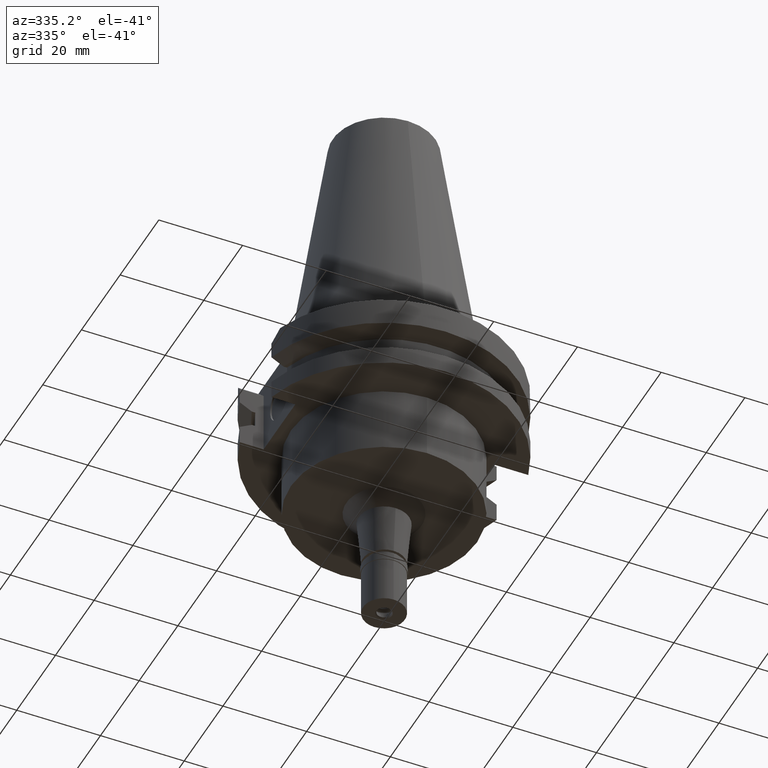
[diagram: clean part render]
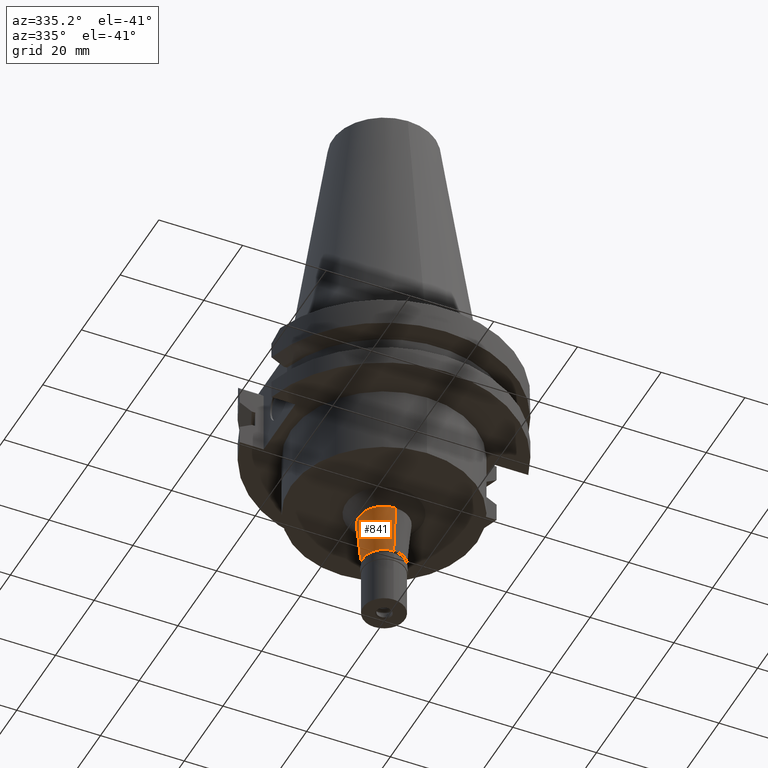
[diagram: same view with one face highlighted and labeled with its STEP entity id]
A machine part, auxiliary view. The second image highlights one B-rep face of the part: STEP entity #841.
In plain terms, the highlighted conical surface has half-angle 5 deg.
Its self-contained STEP definition (entity closure, byte-faithful):
#75 = DIRECTION ( 'NONE',  ( 0.0000000000000000000, 0.0000000000000000000, 1.000000000000000000 ) ) ;
#76 = CARTESIAN_POINT ( 'NONE',  ( 0.0000000000000000000, 6.006119630547999577, -38.00000000000000000 ) ) ;
#84 = CARTESIAN_POINT ( 'NONE',  ( 0.0000000000000000000, -6.006119630547999577, -38.00000000000000000 ) ) ;
#86 = CARTESIAN_POINT ( 'NONE',  ( 0.0000000000000000000, 0.0000000000000000000, -43.75000000000000000 ) ) ;
#296 = CIRCLE ( 'NONE', #1795, 6.006119630547999577 ) ;
#308 = CARTESIAN_POINT ( 'NONE',  ( 0.0000000000000000000, 5.000000000000000000, -49.50000000000000000 ) ) ;
#315 = VECTOR ( 'NONE', #1236, 1000.000000000000000 ) ;
#561 = DIRECTION ( 'NONE',  ( 0.0000000000000000000, 1.000000000000000000, 0.0000000000000000000 ) ) ;
#581 = LINE ( 'NONE', #76, #1510 ) ;
#841 = ADVANCED_FACE ( 'NONE', ( #2505 ), #2599, .T. ) ;
#848 = CARTESIAN_POINT ( 'NONE',  ( 0.0000000000000000000, 6.006119630547999577, -38.00000000000000000 ) ) ;
#873 = DIRECTION ( 'NONE',  ( 0.0000000000000000000, -1.000000000000000000, 0.0000000000000000000 ) ) ;
#874 = VERTEX_POINT ( 'NONE', #308 ) ;
#1202 = AXIS2_PLACEMENT_3D ( 'NONE', #86, #75, #561 ) ;
#1236 = DIRECTION ( 'NONE',  ( 0.0000000000000000000, 0.08715574274765398866, -0.9961946980917458783 ) ) ;
#1383 = ORIENTED_EDGE ( 'NONE', *, *, #2523, .F. ) ;
#1448 = EDGE_CURVE ( 'NONE', #874, #2377, #2049, .T. ) ;
#1510 = VECTOR ( 'NONE', #2756, 1000.000000000000000 ) ;
#1531 = ORIENTED_EDGE ( 'NONE', *, *, #2739, .T. ) ;
#1653 = ORIENTED_EDGE ( 'NONE', *, *, #1448, .T. ) ;
#1699 = VERTEX_POINT ( 'NONE', #84 ) ;
#1743 = AXIS2_PLACEMENT_3D ( 'NONE', #2711, #2676, #2390 ) ;
#1795 = AXIS2_PLACEMENT_3D ( 'NONE', #3094, #2824, #873 ) ;
#1863 = EDGE_CURVE ( 'NONE', #1699, #2893, #296, .T. ) ;
#2049 = CIRCLE ( 'NONE', #1743, 5.000000000000000000 ) ;
#2377 = VERTEX_POINT ( 'NONE', #3159 ) ;
#2390 = DIRECTION ( 'NONE',  ( 0.0000000000000000000, 1.000000000000000000, 0.0000000000000000000 ) ) ;
#2426 = CARTESIAN_POINT ( 'NONE',  ( 0.0000000000000000000, -6.006119630547999577, -38.00000000000000000 ) ) ;
#2466 = LINE ( 'NONE', #2426, #315 ) ;
#2505 = FACE_OUTER_BOUND ( 'NONE', #3093, .T. ) ;
#2523 = EDGE_CURVE ( 'NONE', #1699, #2377, #2466, .T. ) ;
#2557 = ORIENTED_EDGE ( 'NONE', *, *, #1863, .T. ) ;
#2599 = CONICAL_SURFACE ( 'NONE', #1202, 5.503059815273999789, 0.08726646259969973729 ) ;
#2676 = DIRECTION ( 'NONE',  ( 0.0000000000000000000, 0.0000000000000000000, 1.000000000000000000 ) ) ;
#2711 = CARTESIAN_POINT ( 'NONE',  ( 0.0000000000000000000, 0.0000000000000000000, -49.50000000000000000 ) ) ;
#2739 = EDGE_CURVE ( 'NONE', #2893, #874, #581, .T. ) ;
#2756 = DIRECTION ( 'NONE',  ( 0.0000000000000000000, -0.08715574274765398866, -0.9961946980917458783 ) ) ;
#2824 = DIRECTION ( 'NONE',  ( 0.0000000000000000000, 0.0000000000000000000, -1.000000000000000000 ) ) ;
#2893 = VERTEX_POINT ( 'NONE', #848 ) ;
#3093 = EDGE_LOOP ( 'NONE', ( #1653, #1383, #2557, #1531 ) ) ;
#3094 = CARTESIAN_POINT ( 'NONE',  ( 0.0000000000000000000, 0.0000000000000000000, -38.00000000000000000 ) ) ;
#3159 = CARTESIAN_POINT ( 'NONE',  ( 0.0000000000000000000, -5.000000000000000000, -49.50000000000000000 ) ) ;